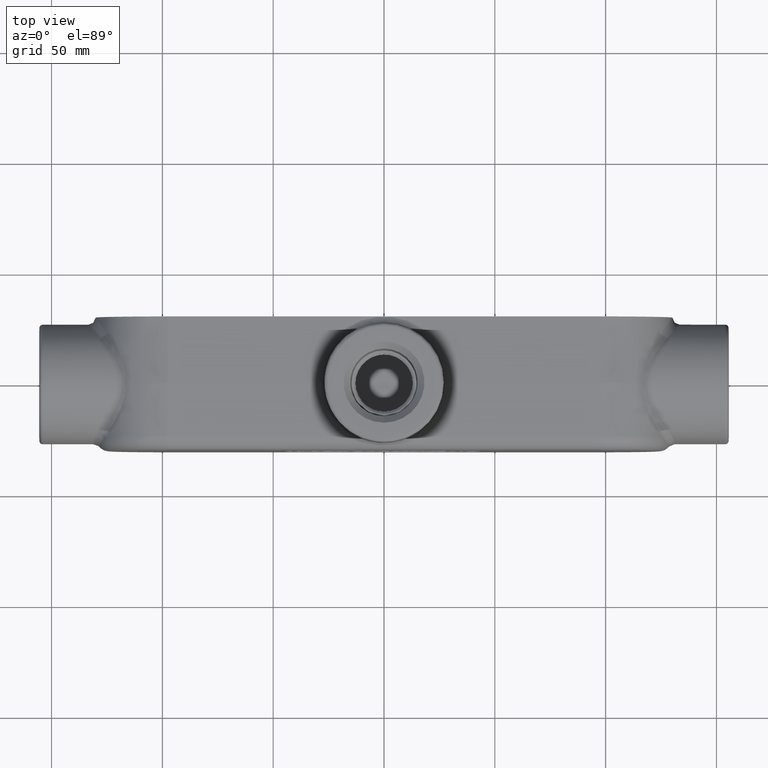
[diagram: clean part render]
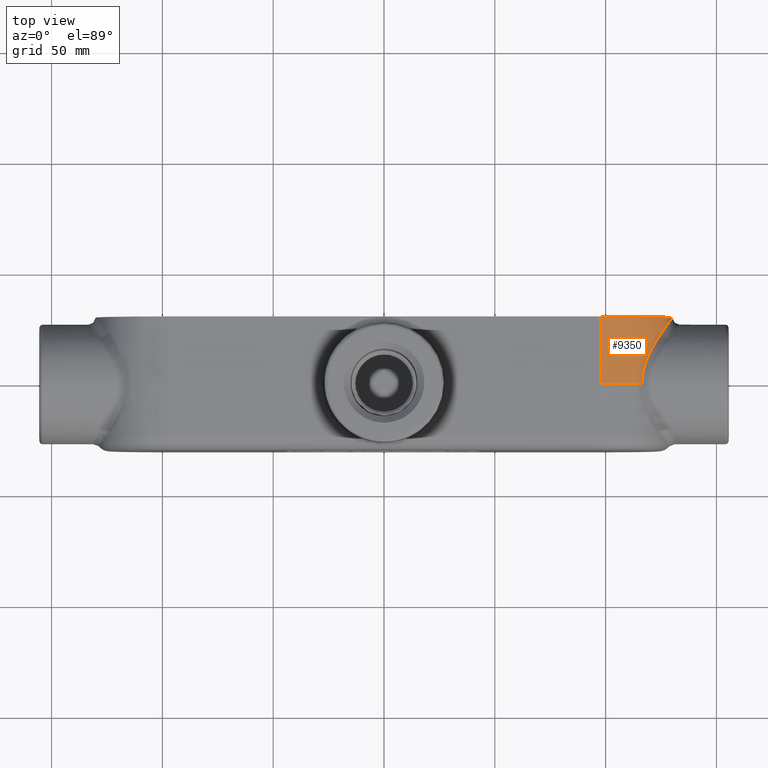
[diagram: same view with one face highlighted and labeled with its STEP entity id]
A machine part, top view. The second image highlights one B-rep face of the part: STEP entity #9350.
In plain terms, the highlighted conical surface has half-angle 1.5 deg.
Its self-contained STEP definition (entity closure, byte-faithful):
#643=B_SPLINE_CURVE_WITH_KNOTS('',3,(#22373,#22374,#22375,#22376,#22377,
#22378,#22379,#22380,#22381,#22382,#22383,#22384,#22385,#22386,#22387,#22388,
#22389,#22390,#22391,#22392,#22393,#22394,#22395,#22396,#22397,#22398,#22399,
#22400,#22401,#22402,#22403,#22404,#22405,#22406,#22407,#22408,#22409,#22410,
#22411,#22412,#22413,#22414,#22415,#22416,#22417,#22418,#22419,#22420,#22421,
#22422,#22423,#22424,#22425,#22426,#22427,#22428,#22429,#22430,#22431,#22432,
#22433,#22434,#22435,#22436,#22437,#22438,#22439,#22440,#22441,#22442,#22443,
#22444,#22445,#22446,#22447,#22448,#22449,#22450,#22451,#22452,#22453,#22454,
#22455,#22456,#22457,#22458,#22459,#22460,#22461,#22462,#22463,#22464,#22465,
#22466,#22467,#22468,#22469,#22470,#22471,#22472),.UNSPECIFIED.,.F.,.F.,
(4,3,3,3,3,3,3,3,3,3,3,3,3,3,3,3,3,3,3,3,3,3,3,3,3,3,3,3,3,3,3,3,3,4),(-14.9635022112557,
-14.7598637668904,-14.5281345367658,-14.4040880904884,-14.2532650213966,
-13.8939230288535,-13.8213016037004,-13.5346046607861,-12.8159496290064,
-12.3901447406549,-12.0974842157522,-11.5722955824265,-11.3580934727055,
-11.1393450079454,-10.6602168015292,-10.4770035824647,-10.1810925107511,
-9.94163094340918,-9.40625830436864,-9.22297838160275,-8.52516841423092,
-8.50438774417025,-8.00914278028481,-7.78577376647709,-7.4931171463387,
-6.9170994766474,-6.34837531008833,-6.06196028339803,-5.74062757790703,
-5.63014796530246,-5.39213054338923,-5.15594510944332,-5.00663451963438,
-4.91975967549742),.UNSPECIFIED.);
#1295=FACE_OUTER_BOUND('',#1835,.T.);
#1835=EDGE_LOOP('',(#7654,#7655,#7656,#7657,#7658,#7659));
#2375=LINE('',#22535,#3109);
#2379=LINE('',#22671,#3113);
#3109=VECTOR('',#11188,0.393835745075145);
#3113=VECTOR('',#11206,0.393835745075145);
#3708=CIRCLE('',#9958,1.28140421813659);
#3720=CIRCLE('',#9981,1.3125);
#3721=CIRCLE('',#9982,1.3125);
#4257=VERTEX_POINT('',#22270);
#4258=VERTEX_POINT('',#22271);
#4264=VERTEX_POINT('',#22371);
#4265=VERTEX_POINT('',#22372);
#4269=VERTEX_POINT('',#22532);
#4276=VERTEX_POINT('',#22669);
#5445=EDGE_CURVE('',#4257,#4258,#3708,.T.);
#5453=EDGE_CURVE('',#4264,#4265,#643,.T.);
#5459=EDGE_CURVE('',#4269,#4257,#2375,.T.);
#5473=EDGE_CURVE('',#4258,#4276,#2379,.T.);
#5483=EDGE_CURVE('',#4269,#4264,#3720,.T.);
#5484=EDGE_CURVE('',#4265,#4276,#3721,.T.);
#7654=ORIENTED_EDGE('',*,*,#5453,.F.);
#7655=ORIENTED_EDGE('',*,*,#5483,.F.);
#7656=ORIENTED_EDGE('',*,*,#5459,.T.);
#7657=ORIENTED_EDGE('',*,*,#5445,.T.);
#7658=ORIENTED_EDGE('',*,*,#5473,.T.);
#7659=ORIENTED_EDGE('',*,*,#5484,.F.);
#9050=CONICAL_SURFACE('',#9980,1.32012020167895,0.0261799387799149);
#9350=ADVANCED_FACE('',(#1295),#9050,.T.);
#9958=AXIS2_PLACEMENT_3D('',#22272,#11168,#11169);
#9980=AXIS2_PLACEMENT_3D('',#22745,#11223,#11224);
#9981=AXIS2_PLACEMENT_3D('',#22746,#11225,#11226);
#9982=AXIS2_PLACEMENT_3D('',#22747,#11227,#11228);
#11168=DIRECTION('center_axis',(0.,-1.,0.));
#11169=DIRECTION('ref_axis',(0.,0.,-1.));
#11188=DIRECTION('',(1.03462273579771E-16,0.999657324975557,0.0261769483078731));
#11206=DIRECTION('',(-9.31925325896583E-17,-0.999657324975557,0.0261769483078731));
#11223=DIRECTION('center_axis',(-9.71778150648538E-17,-1.,1.23259516440783E-32));
#11224=DIRECTION('ref_axis',(0.,0.,-1.));
#11225=DIRECTION('center_axis',(-9.71778150648538E-17,-1.,1.23259516440783E-32));
#11226=DIRECTION('ref_axis',(0.,0.,-1.));
#11227=DIRECTION('center_axis',(-9.71778150648538E-17,-1.,1.23259516440783E-32));
#11228=DIRECTION('ref_axis',(0.,0.,-1.));
#22270=CARTESIAN_POINT('',(3.84359578186341,1.1875,-1.28140421813659));
#22271=CARTESIAN_POINT('',(3.84359578186341,1.1875,1.28140421813659));
#22272=CARTESIAN_POINT('Origin',(3.84359578186341,1.1875,-4.37095678986282E-16));
#22371=CARTESIAN_POINT('',(4.58320420662205,6.49761919248649E-15,-1.08426732313855));
#22372=CARTESIAN_POINT('',(4.58320420662205,-6.840862835079E-14,1.08426732313855));
#22373=CARTESIAN_POINT('Ctrl Pts',(4.58320464154913,1.80512692016244E-8,
-1.08426718071065));
#22374=CARTESIAN_POINT('Ctrl Pts',(4.58214300271726,0.0267006462776859,
-1.08414749485883));
#22375=CARTESIAN_POINT('Ctrl Pts',(4.58236840117294,0.0534534421939352,
-1.08317677094739));
#22376=CARTESIAN_POINT('Ctrl Pts',(4.58376027006746,0.0800568799639217,
-1.08139855762818));
#22377=CARTESIAN_POINT('Ctrl Pts',(4.58534413950021,0.110330113352251,-1.07937504971569));
#22378=CARTESIAN_POINT('Ctrl Pts',(4.58843674574488,0.140419355199532,-1.07630674283576));
#22379=CARTESIAN_POINT('Ctrl Pts',(4.5928506545047,0.170109672765153,-1.07226227086282));
#22380=CARTESIAN_POINT('Ctrl Pts',(4.59521345394763,0.186003129023912,-1.07009723378467));
#22381=CARTESIAN_POINT('Ctrl Pts',(4.59795474549663,0.201783062809426,-1.06765256754693));
#22382=CARTESIAN_POINT('Ctrl Pts',(4.60104901740327,0.217430148413235,-1.06493608991532));
#22383=CARTESIAN_POINT('Ctrl Pts',(4.6048112177691,0.236454808481544,-1.06163323436553));
#22384=CARTESIAN_POINT('Ctrl Pts',(4.60909455250084,0.25527798733311,-1.057929193345));
#22385=CARTESIAN_POINT('Ctrl Pts',(4.61384961365844,0.273841332237581,-1.05384123150404));
#22386=CARTESIAN_POINT('Ctrl Pts',(4.62517873699034,0.318069243699701,-1.044101498967));
#22387=CARTESIAN_POINT('Ctrl Pts',(4.63918613769216,0.360821907653218,-1.03218206353583));
#22388=CARTESIAN_POINT('Ctrl Pts',(4.65475835922888,0.402113728087453,-1.01841035380444));
#22389=CARTESIAN_POINT('Ctrl Pts',(4.65790543623147,0.410458622114117,-1.01562715226317));
#22390=CARTESIAN_POINT('Ctrl Pts',(4.66111640245206,0.418743863036565,-1.01276831626751));
#22391=CARTESIAN_POINT('Ctrl Pts',(4.66438536829091,0.426969598251432,-1.00983521179911));
#22392=CARTESIAN_POINT('Ctrl Pts',(4.67729068528949,0.45944339141029,-0.998255817941653));
#22393=CARTESIAN_POINT('Ctrl Pts',(4.69109914017338,0.490987930113965,-0.985519651708176));
#22394=CARTESIAN_POINT('Ctrl Pts',(4.70545137860355,0.521620487290173,-0.971708243462108));
#22395=CARTESIAN_POINT('Ctrl Pts',(4.74142772442817,0.598406242754412,-0.937087581200745));
#22396=CARTESIAN_POINT('Ctrl Pts',(4.780820952728,0.669462767946906,-0.895711974195401));
#22397=CARTESIAN_POINT('Ctrl Pts',(4.81998104488349,0.735151546460561,-0.848034047678604));
#22398=CARTESIAN_POINT('Ctrl Pts',(4.84318349658944,0.774072310615905,-0.819784757992233));
#22399=CARTESIAN_POINT('Ctrl Pts',(4.86630415918059,0.811108420449382,-0.789322650508796));
#22400=CARTESIAN_POINT('Ctrl Pts',(4.88884557698758,0.846105774295076,-0.756619794930118));
#22401=CARTESIAN_POINT('Ctrl Pts',(4.90433854888131,0.870159852176478,-0.734142751708449));
#22402=CARTESIAN_POINT('Ctrl Pts',(4.9195455701964,0.893231947328137,-0.710625109428242));
#22403=CARTESIAN_POINT('Ctrl Pts',(4.93431057480739,0.915282575547273,-0.686054535741962));
#22404=CARTESIAN_POINT('Ctrl Pts',(4.9608068458548,0.954853130210328,-0.641961858676563));
#22405=CARTESIAN_POINT('Ctrl Pts',(4.98588090950552,0.991136166018571,-0.594480147796517));
#22406=CARTESIAN_POINT('Ctrl Pts',(5.00859700321096,1.02341374951253,-0.543847337995525));
#22407=CARTESIAN_POINT('Ctrl Pts',(5.01786193182434,1.03657840320527,-0.52319636805394));
#22408=CARTESIAN_POINT('Ctrl Pts',(5.02673441460608,1.04907637925482,-0.50202087038038));
#22409=CARTESIAN_POINT('Ctrl Pts',(5.03514976913914,1.06085710663227,-0.480335615585944));
#22410=CARTESIAN_POINT('Ctrl Pts',(5.043743736243,1.07288787528778,-0.458190099837316));
#22411=CARTESIAN_POINT('Ctrl Pts',(5.05185445823665,1.08415979363251,-0.43552961345739));
#22412=CARTESIAN_POINT('Ctrl Pts',(5.05941356252244,1.09461910549861,-0.412374566663897));
#22413=CARTESIAN_POINT('Ctrl Pts',(5.07597038765276,1.11752830095399,-0.361657703110972));
#22414=CARTESIAN_POINT('Ctrl Pts',(5.08988124575164,1.13653961306439,-0.308568408624995));
#22415=CARTESIAN_POINT('Ctrl Pts',(5.10056309308316,1.15104572744624,-0.253842253627399));
#22416=CARTESIAN_POINT('Ctrl Pts',(5.10464771095569,1.15659270188111,-0.232915589553228));
#22417=CARTESIAN_POINT('Ctrl Pts',(5.10826011861739,1.16148082950089,-0.211749556587692));
#22418=CARTESIAN_POINT('Ctrl Pts',(5.11136960845897,1.16567664548616,-0.190402961444874));
#22419=CARTESIAN_POINT('Ctrl Pts',(5.11639180323403,1.172453385785,-0.155925679301141));
#22420=CARTESIAN_POINT('Ctrl Pts',(5.12010467646268,1.17744790663361,-0.120952985850737));
#22421=CARTESIAN_POINT('Ctrl Pts',(5.12237254800698,1.18050854732395,-0.0857521480973296));
#22422=CARTESIAN_POINT('Ctrl Pts',(5.1242077888156,1.18298532459536,-0.0572664015811026));
#22423=CARTESIAN_POINT('Ctrl Pts',(5.1250968053297,1.18419575971304,-0.0286313707455423));
#22424=CARTESIAN_POINT('Ctrl Pts',(5.12506536506363,1.18416876386877,-2.06812236994232E-8));
#22425=CARTESIAN_POINT('Ctrl Pts',(5.12499507295621,1.18410840831131,0.0640120945545403));
#22426=CARTESIAN_POINT('Ctrl Pts',(5.12032939606722,1.17780891066995,0.127987961376632));
#22427=CARTESIAN_POINT('Ctrl Pts',(5.11135990297076,1.16562078321361,0.190391519875162));
#22428=CARTESIAN_POINT('Ctrl Pts',(5.10828927910602,1.16144828933559,0.211754806953906));
#22429=CARTESIAN_POINT('Ctrl Pts',(5.10471354817503,1.15659052381838,0.232935281821926));
#22430=CARTESIAN_POINT('Ctrl Pts',(5.10064408879458,1.15106169556209,0.253867812206252));
#22431=CARTESIAN_POINT('Ctrl Pts',(5.08515025141925,1.13001153683817,0.333565185077551));
#22432=CARTESIAN_POINT('Ctrl Pts',(5.06249741050572,1.09923111618551,0.409666313138402));
#22433=CARTESIAN_POINT('Ctrl Pts',(5.0351152298447,1.06084439764658,0.480315875373694));
#22434=CARTESIAN_POINT('Ctrl Pts',(5.03429979285116,1.05970124726185,0.482419808122422));
#22435=CARTESIAN_POINT('Ctrl Pts',(5.03348014518241,1.0585511989399,0.484518964146276));
#22436=CARTESIAN_POINT('Ctrl Pts',(5.03265635181182,1.05739431191133,0.486613290977817));
#22437=CARTESIAN_POINT('Ctrl Pts',(5.01302370681657,1.02982337829793,0.536525291554427));
#22438=CARTESIAN_POINT('Ctrl Pts',(4.99103570620754,0.998366872702571,0.583691418432376));
#22439=CARTESIAN_POINT('Ctrl Pts',(4.96738909035722,0.963794726176908,0.627924830807146));
#22440=CARTESIAN_POINT('Ctrl Pts',(4.9567238203443,0.948201743233543,0.64787530869184));
#22441=CARTESIAN_POINT('Ctrl Pts',(4.9457165724119,0.931968259446786,0.667238280386408));
#22442=CARTESIAN_POINT('Ctrl Pts',(4.93443296766155,0.915150254820948,0.685994613619311));
#22443=CARTESIAN_POINT('Ctrl Pts',(4.91964926255885,0.893115415219127,0.710569038677462));
#22444=CARTESIAN_POINT('Ctrl Pts',(4.90439112566927,0.870076916792728,0.734101918734828));
#22445=CARTESIAN_POINT('Ctrl Pts',(4.88886778881386,0.84603989189811,0.756570763391293));
#22446=CARTESIAN_POINT('Ctrl Pts',(4.85831417852116,0.798729323425196,0.800794781059344));
#22447=CARTESIAN_POINT('Ctrl Pts',(4.82666326604928,0.74782735908361,0.840981409821681));
#22448=CARTESIAN_POINT('Ctrl Pts',(4.79543298630478,0.693328718473406,0.877030695374807));
#22449=CARTESIAN_POINT('Ctrl Pts',(4.76459814259483,0.639520136566097,0.912623526914575));
#22450=CARTESIAN_POINT('Ctrl Pts',(4.73417407714705,0.582205669075813,0.944181810222875));
#22451=CARTESIAN_POINT('Ctrl Pts',(4.70563759740855,0.521427121973871,0.971606307345449));
#22452=CARTESIAN_POINT('Ctrl Pts',(4.69126634841557,0.490818453986853,0.985417551068137));
#22453=CARTESIAN_POINT('Ctrl Pts',(4.67737391662459,0.459331945398437,0.998180506152187));
#22454=CARTESIAN_POINT('Ctrl Pts',(4.66443909951363,0.426918429840989,1.00976385270368));
#22455=CARTESIAN_POINT('Ctrl Pts',(4.64992736168575,0.390553289474901,1.02275935831329));
#22456=CARTESIAN_POINT('Ctrl Pts',(4.63656139308654,0.353023486352573,1.03431686457804));
#22457=CARTESIAN_POINT('Ctrl Pts',(4.62506745529915,0.314291163710277,1.04420627805918));
#22458=CARTESIAN_POINT('Ctrl Pts',(4.6211156453142,0.300974336858628,1.0476064254815));
#22459=CARTESIAN_POINT('Ctrl Pts',(4.61738498493441,0.287515699391745,1.05080962838584));
#22460=CARTESIAN_POINT('Ctrl Pts',(4.61390436812725,0.273914796932566,1.05380730122577));
#22461=CARTESIAN_POINT('Ctrl Pts',(4.60640572272492,0.244612994883222,1.06026549151338));
#22462=CARTESIAN_POINT('Ctrl Pts',(4.60006839909586,0.214650351817679,1.06576917923453));
#22463=CARTESIAN_POINT('Ctrl Pts',(4.59510811165514,0.184291794211032,1.07023914979735));
#22464=CARTESIAN_POINT('Ctrl Pts',(4.59018600287727,0.154166902324287,1.07467471560013));
#22465=CARTESIAN_POINT('Ctrl Pts',(4.58659464336187,0.123594550151355,1.0781119481005));
#22466=CARTESIAN_POINT('Ctrl Pts',(4.58454124848472,0.0927985615221073,
1.08047546023885));
#22467=CARTESIAN_POINT('Ctrl Pts',(4.58324314302963,0.0733300991823194,
1.08196961415639));
#22468=CARTESIAN_POINT('Ctrl Pts',(4.58255982630558,0.0537687183423045,
1.08303467818419));
#22469=CARTESIAN_POINT('Ctrl Pts',(4.58254423329611,0.0341856401905734,
1.08365087733839));
#22470=CARTESIAN_POINT('Ctrl Pts',(4.58253516066256,0.0227914258596903,
1.08400940653278));
#22471=CARTESIAN_POINT('Ctrl Pts',(4.58275211006068,0.0113908726711998,
1.0842159694939));
#22472=CARTESIAN_POINT('Ctrl Pts',(4.58320468928743,2.00219275893997E-8,
1.08426716151409));
#22532=CARTESIAN_POINT('',(3.84359578186341,-1.3987061727561E-15,-1.3125));
#22535=CARTESIAN_POINT('',(3.84359578186341,-0.291003761651864,-1.32012020167895));
#22669=CARTESIAN_POINT('',(3.84359578186341,-1.3987061727561E-15,1.3125));
#22671=CARTESIAN_POINT('',(3.84359578186341,-0.291003761651864,1.32012020167895));
#22745=CARTESIAN_POINT('Origin',(3.84359578186341,-0.291003761651864,-4.37095678986282E-16));
#22746=CARTESIAN_POINT('Origin',(3.84359578186341,3.27821759239712E-15,
-4.37095678986282E-16));
#22747=CARTESIAN_POINT('Origin',(3.84359578186341,3.27821759239712E-15,
-4.37095678986282E-16));